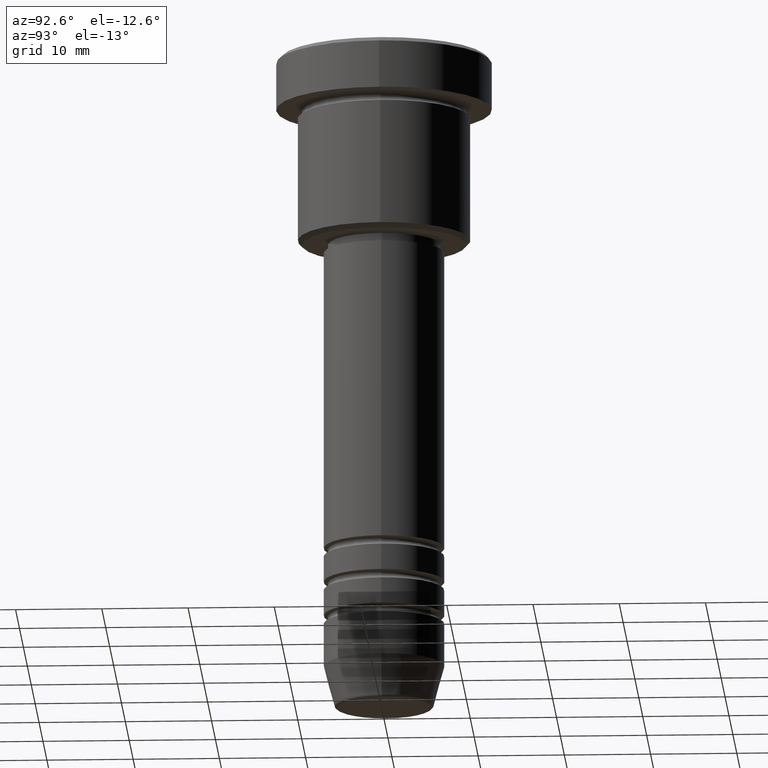
[diagram: clean part render]
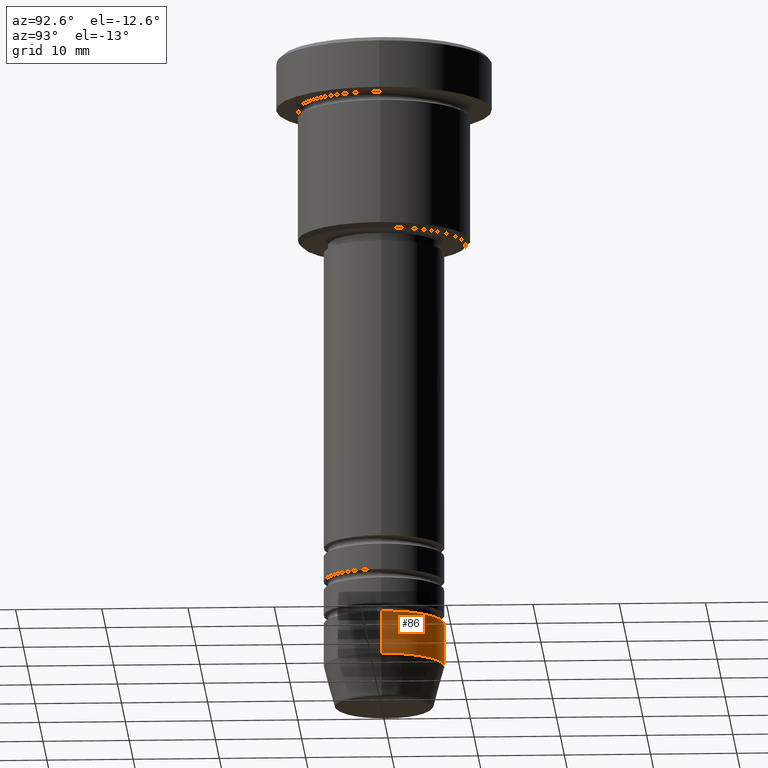
[diagram: same view with one face highlighted and labeled with its STEP entity id]
A machine part, auxiliary view. The second image highlights one B-rep face of the part: STEP entity #86.
In plain terms, the highlighted cylindrical surface (partial cylindrical patch) has radius 7 mm, axis along (-0, -0, 1).
Its self-contained STEP definition (entity closure, byte-faithful):
#15 = DIRECTION ( 'NONE',  ( -0.000000000000000000, -0.000000000000000000, 1.000000000000000000 ) ) ;
#72 = ORIENTED_EDGE ( 'NONE', *, *, #720, .F. ) ;
#86 = ADVANCED_FACE ( 'NONE', ( #242 ), #505, .T. ) ;
#106 = DIRECTION ( 'NONE',  ( -0.000000000000000000, -0.000000000000000000, 1.000000000000000000 ) ) ;
#134 = DIRECTION ( 'NONE',  ( 1.000000000000000000, 0.000000000000000000, 0.000000000000000000 ) ) ;
#135 = CARTESIAN_POINT ( 'NONE',  ( -7.000000000000000000, 8.572527594031473190E-16, -67.00000000000000000 ) ) ;
#136 = CARTESIAN_POINT ( 'NONE',  ( 7.000000000000000000, 0.000000000000000000, -67.00000000000000000 ) ) ;
#164 = VERTEX_POINT ( 'NONE', #283 ) ;
#171 = AXIS2_PLACEMENT_3D ( 'NONE', #185, #106, #477 ) ;
#185 = CARTESIAN_POINT ( 'NONE',  ( 0.000000000000000000, 0.000000000000000000, -67.00000000000000000 ) ) ;
#230 = CIRCLE ( 'NONE', #171, 7.000000000000000000 ) ;
#242 = FACE_OUTER_BOUND ( 'NONE', #517, .T. ) ;
#259 = EDGE_CURVE ( 'NONE', #164, #840, #1017, .T. ) ;
#283 = CARTESIAN_POINT ( 'NONE',  ( -7.000000000000000000, 8.572527594031473190E-16, -72.00000000000001421 ) ) ;
#320 = VERTEX_POINT ( 'NONE', #1061 ) ;
#336 = CARTESIAN_POINT ( 'NONE',  ( 7.000000000000000000, 0.000000000000000000, 0.000000000000000000 ) ) ;
#355 = EDGE_CURVE ( 'NONE', #320, #164, #904, .T. ) ;
#425 = LINE ( 'NONE', #336, #1035 ) ;
#477 = DIRECTION ( 'NONE',  ( 1.000000000000000000, 0.000000000000000000, 0.000000000000000000 ) ) ;
#505 = CYLINDRICAL_SURFACE ( 'NONE', #989, 7.000000000000000000 ) ;
#517 = EDGE_LOOP ( 'NONE', ( #751, #680, #72, #951 ) ) ;
#625 = CARTESIAN_POINT ( 'NONE',  ( 0.000000000000000000, 0.000000000000000000, -72.00000000000001421 ) ) ;
#632 = DIRECTION ( 'NONE',  ( 1.000000000000000000, 0.000000000000000000, 0.000000000000000000 ) ) ;
#638 = DIRECTION ( 'NONE',  ( -0.000000000000000000, -0.000000000000000000, 1.000000000000000000 ) ) ;
#680 = ORIENTED_EDGE ( 'NONE', *, *, #259, .T. ) ;
#688 = DIRECTION ( 'NONE',  ( -0.000000000000000000, -0.000000000000000000, 1.000000000000000000 ) ) ;
#703 = DIRECTION ( 'NONE',  ( -0.000000000000000000, -0.000000000000000000, 1.000000000000000000 ) ) ;
#720 = EDGE_CURVE ( 'NONE', #743, #840, #230, .T. ) ;
#743 = VERTEX_POINT ( 'NONE', #136 ) ;
#751 = ORIENTED_EDGE ( 'NONE', *, *, #355, .T. ) ;
#819 = EDGE_CURVE ( 'NONE', #320, #743, #425, .T. ) ;
#840 = VERTEX_POINT ( 'NONE', #135 ) ;
#856 = CARTESIAN_POINT ( 'NONE',  ( -7.000000000000000000, 8.572527594031473190E-16, 0.000000000000000000 ) ) ;
#883 = CARTESIAN_POINT ( 'NONE',  ( 0.000000000000000000, 0.000000000000000000, 0.000000000000000000 ) ) ;
#904 = CIRCLE ( 'NONE', #1051, 7.000000000000000000 ) ;
#951 = ORIENTED_EDGE ( 'NONE', *, *, #819, .F. ) ;
#989 = AXIS2_PLACEMENT_3D ( 'NONE', #883, #688, #134 ) ;
#1017 = LINE ( 'NONE', #856, #1089 ) ;
#1035 = VECTOR ( 'NONE', #703, 1000.000000000000000 ) ;
#1051 = AXIS2_PLACEMENT_3D ( 'NONE', #625, #638, #632 ) ;
#1061 = CARTESIAN_POINT ( 'NONE',  ( 7.000000000000000000, 0.000000000000000000, -72.00000000000001421 ) ) ;
#1089 = VECTOR ( 'NONE', #15, 1000.000000000000000 ) ;